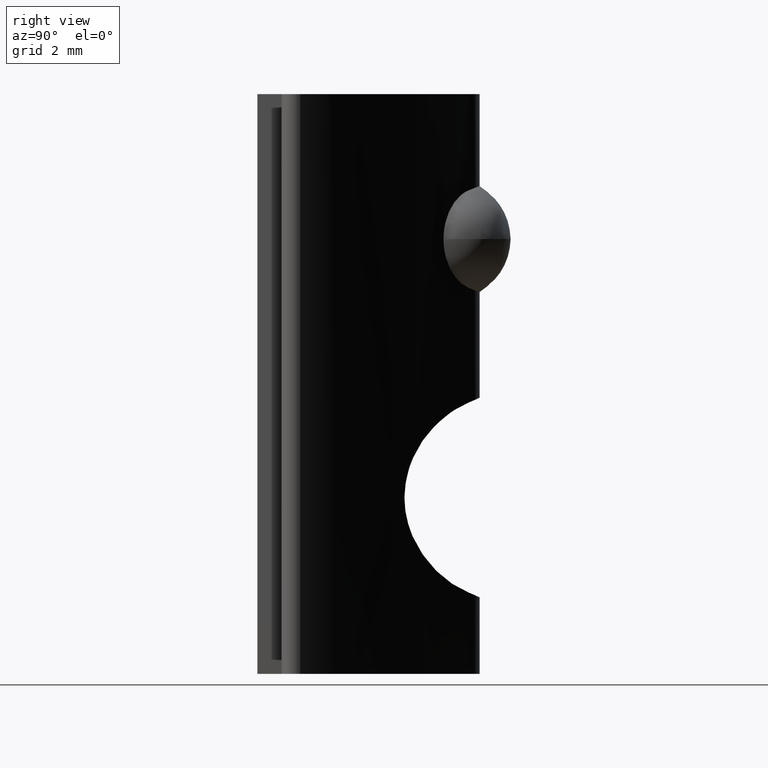
[diagram: clean part render]
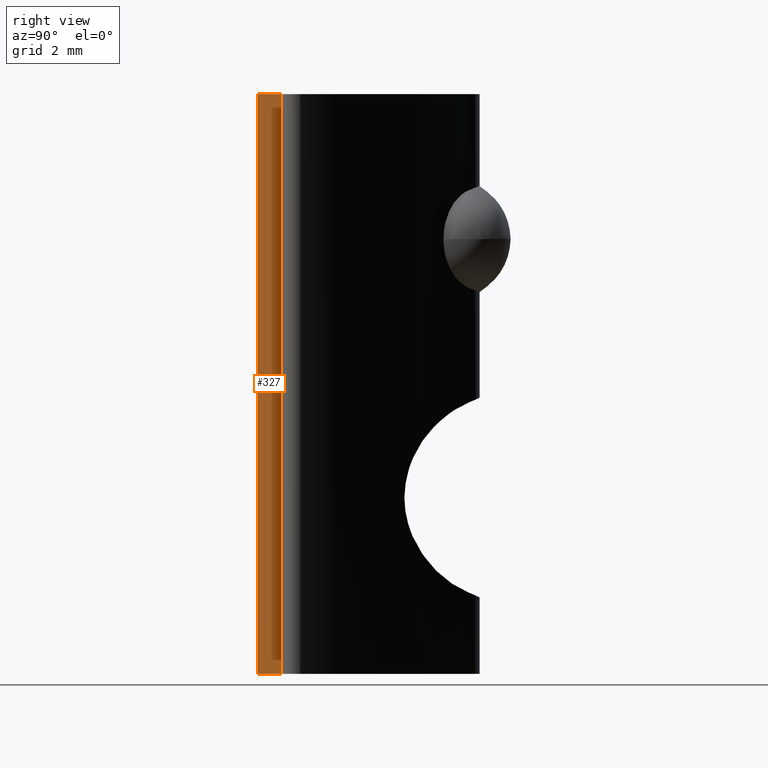
[diagram: same view with one face highlighted and labeled with its STEP entity id]
A machine part, right view. The second image highlights one B-rep face of the part: STEP entity #327.
In plain terms, the highlighted planar face has unit normal (1, 0, 0).
Its self-contained STEP definition (entity closure, byte-faithful):
#15=PLANE('',#374);
#33=LINE('',#652,#58);
#34=LINE('',#655,#59);
#35=LINE('',#657,#60);
#36=LINE('',#658,#61);
#58=VECTOR('',#432,10.);
#59=VECTOR('',#435,10.);
#60=VECTOR('',#436,10.);
#61=VECTOR('',#437,10.);
#100=FACE_OUTER_BOUND('',#117,.T.);
#117=EDGE_LOOP('',(#271,#272,#273,#274));
#161=VERTEX_POINT('',#646);
#163=VERTEX_POINT('',#650);
#164=VERTEX_POINT('',#654);
#165=VERTEX_POINT('',#656);
#203=EDGE_CURVE('',#161,#163,#33,.T.);
#204=EDGE_CURVE('',#161,#164,#34,.T.);
#205=EDGE_CURVE('',#165,#163,#35,.T.);
#206=EDGE_CURVE('',#164,#165,#36,.T.);
#271=ORIENTED_EDGE('',*,*,#204,.F.);
#272=ORIENTED_EDGE('',*,*,#203,.T.);
#273=ORIENTED_EDGE('',*,*,#205,.F.);
#274=ORIENTED_EDGE('',*,*,#206,.F.);
#327=ADVANCED_FACE('',(#100),#15,.T.);
#374=AXIS2_PLACEMENT_3D('',#653,#433,#434);
#432=DIRECTION('',(0.,0.,1.));
#433=DIRECTION('center_axis',(1.,0.,0.));
#434=DIRECTION('ref_axis',(0.,1.,0.));
#435=DIRECTION('',(0.,-1.,0.));
#436=DIRECTION('',(0.,1.,0.));
#437=DIRECTION('',(0.,0.,1.));
#646=CARTESIAN_POINT('',(2.4,0.,0.));
#650=CARTESIAN_POINT('',(2.4,0.,12.));
#652=CARTESIAN_POINT('',(2.4,0.,0.));
#653=CARTESIAN_POINT('Origin',(2.4,-0.5,0.));
#654=CARTESIAN_POINT('',(2.4,-0.5,0.));
#655=CARTESIAN_POINT('',(2.4,0.,0.));
#656=CARTESIAN_POINT('',(2.4,-0.5,12.));
#657=CARTESIAN_POINT('',(2.4,0.,12.));
#658=CARTESIAN_POINT('',(2.4,-0.5,0.));